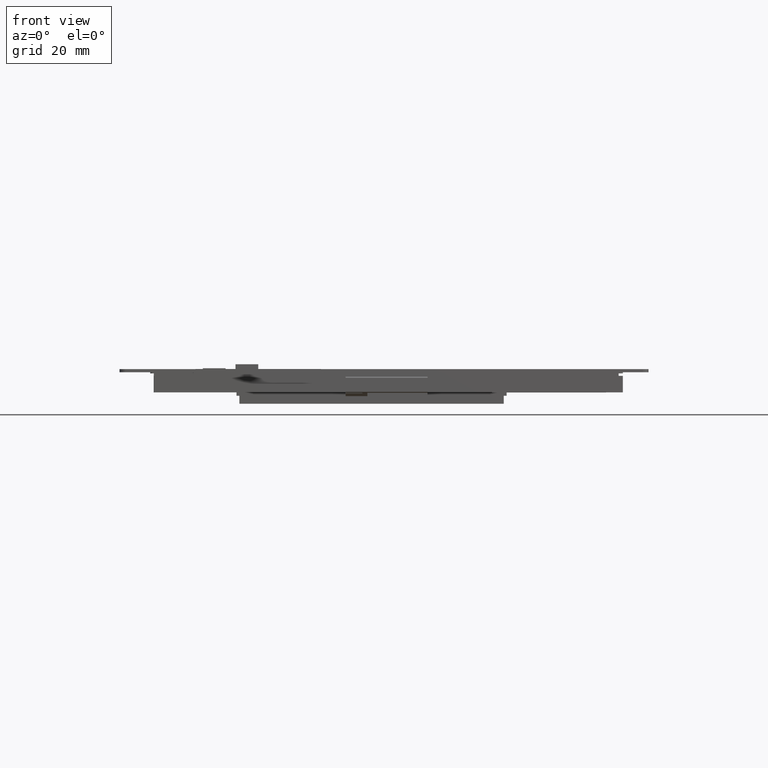
[diagram: clean part render]
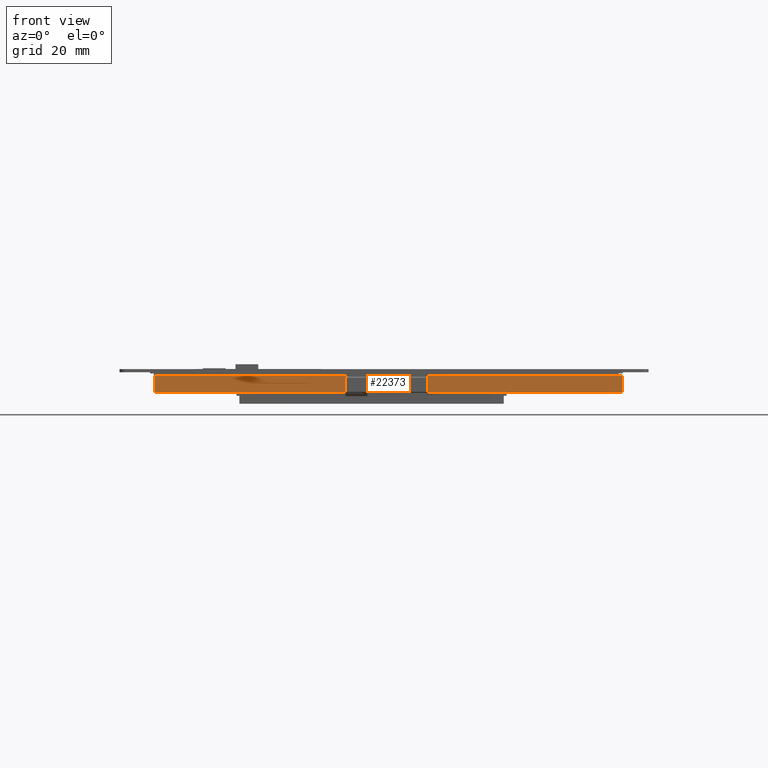
[diagram: same view with one face highlighted and labeled with its STEP entity id]
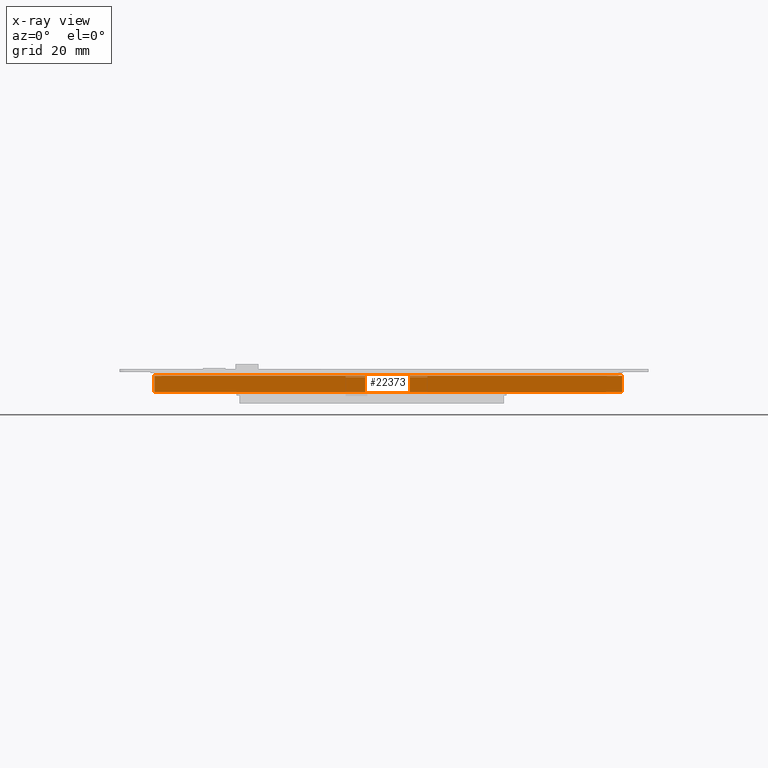
[diagram: x-ray of the same camera — body ghosted, the highlighted face saturated]
A machine part, front view. The second image highlights one B-rep face of the part: STEP entity #22373.
The next image is the same camera in x-ray: the body ghosted, the highlighted face saturated — about 0% of this face is hidden behind the body in this view.
In plain terms, the highlighted planar face has unit normal (0, -1, 0).
Its self-contained STEP definition (entity closure, byte-faithful):
#790=FACE_BOUND('',#3101,.T.);
#1870=FACE_OUTER_BOUND('',#3100,.T.);
#3100=EDGE_LOOP('',(#20115,#20116,#20117,#20118,#20119,#20120,#20121,#20122));
#3101=EDGE_LOOP('',(#20123,#20124,#20125,#20126));
#3270=LINE('',#30269,#6015);
#3535=LINE('',#30875,#6280);
#3548=LINE('',#30913,#6293);
#3551=LINE('',#30918,#6296);
#3552=LINE('',#30920,#6297);
#5732=LINE('',#36096,#8477);
#5752=LINE('',#36135,#8497);
#5753=LINE('',#36138,#8498);
#5754=LINE('',#36140,#8499);
#5756=LINE('',#36149,#8501);
#5807=LINE('',#36251,#8552);
#5808=LINE('',#36253,#8553);
#6015=VECTOR('',#24285,1000.);
#6280=VECTOR('',#24828,10.);
#6293=VECTOR('',#24871,10.);
#6296=VECTOR('',#24876,10.);
#6297=VECTOR('',#24879,10.);
#8477=VECTOR('',#29689,10.);
#8497=VECTOR('',#29721,10.);
#8498=VECTOR('',#29724,10.);
#8499=VECTOR('',#29725,10.);
#8501=VECTOR('',#29737,1000.);
#8552=VECTOR('',#29794,1000.);
#8553=VECTOR('',#29797,1000.);
#8739=VERTEX_POINT('',#30266);
#8740=VERTEX_POINT('',#30268);
#8941=VERTEX_POINT('',#30872);
#8942=VERTEX_POINT('',#30874);
#8952=VERTEX_POINT('',#30912);
#8953=VERTEX_POINT('',#30916);
#10632=VERTEX_POINT('',#36092);
#10634=VERTEX_POINT('',#36095);
#10646=VERTEX_POINT('',#36131);
#10647=VERTEX_POINT('',#36133);
#10648=VERTEX_POINT('',#36137);
#10649=VERTEX_POINT('',#36139);
#10871=EDGE_CURVE('',#8739,#8740,#3270,.T.);
#11171=EDGE_CURVE('',#8942,#8941,#3535,.T.);
#11190=EDGE_CURVE('',#8952,#8942,#3548,.T.);
#11193=EDGE_CURVE('',#8941,#8953,#3551,.T.);
#11194=EDGE_CURVE('',#8953,#8952,#3552,.T.);
#13780=EDGE_CURVE('',#10632,#10634,#5732,.T.);
#13800=EDGE_CURVE('',#10646,#10647,#5752,.T.);
#13801=EDGE_CURVE('',#10648,#10647,#5753,.T.);
#13802=EDGE_CURVE('',#10634,#10649,#5754,.T.);
#13808=EDGE_CURVE('',#10632,#10646,#5756,.T.);
#13859=EDGE_CURVE('',#10648,#8740,#5807,.T.);
#13860=EDGE_CURVE('',#10649,#8739,#5808,.T.);
#20115=ORIENTED_EDGE('',*,*,#10871,.F.);
#20116=ORIENTED_EDGE('',*,*,#13860,.F.);
#20117=ORIENTED_EDGE('',*,*,#13802,.F.);
#20118=ORIENTED_EDGE('',*,*,#13780,.F.);
#20119=ORIENTED_EDGE('',*,*,#13808,.T.);
#20120=ORIENTED_EDGE('',*,*,#13800,.T.);
#20121=ORIENTED_EDGE('',*,*,#13801,.F.);
#20122=ORIENTED_EDGE('',*,*,#13859,.T.);
#20123=ORIENTED_EDGE('',*,*,#11171,.T.);
#20124=ORIENTED_EDGE('',*,*,#11193,.T.);
#20125=ORIENTED_EDGE('',*,*,#11194,.T.);
#20126=ORIENTED_EDGE('',*,*,#11190,.T.);
#21237=PLANE('',#24000);
#22373=ADVANCED_FACE('',(#1870,#790),#21237,.T.);
#24000=AXIS2_PLACEMENT_3D('',#36252,#29795,#29796);
#24285=DIRECTION('',(1.,0.,0.));
#24828=DIRECTION('',(0.,0.,-1.));
#24871=DIRECTION('',(1.,0.,0.));
#24876=DIRECTION('',(-1.,0.,0.));
#24879=DIRECTION('',(0.,0.,1.));
#29689=DIRECTION('',(0.,0.,-1.));
#29721=DIRECTION('',(0.,0.,-1.));
#29724=DIRECTION('',(-1.,0.,0.));
#29725=DIRECTION('',(-1.,0.,0.));
#29737=DIRECTION('',(1.,0.,0.));
#29794=DIRECTION('',(0.,0.,1.));
#29795=DIRECTION('center_axis',(0.,-1.,0.));
#29796=DIRECTION('ref_axis',(0.,0.,-1.));
#29797=DIRECTION('',(0.,0.,1.));
#30266=CARTESIAN_POINT('',(-80.655,-52.36,-2.37));
#30268=CARTESIAN_POINT('',(83.685,-52.36,-2.37));
#30269=CARTESIAN_POINT('',(-80.655,-52.36,-2.37));
#30872=CARTESIAN_POINT('',(15.3325,-52.36,-2.829999999999));
#30874=CARTESIAN_POINT('',(15.3325,-52.36,-2.71000000000003));
#30875=CARTESIAN_POINT('',(15.3325,-52.36,-5.62749999999952));
#30912=CARTESIAN_POINT('',(-13.4831,-52.36,-2.71000000000003));
#30913=CARTESIAN_POINT('',(-47.06905,-52.36,-2.71000000000003));
#30916=CARTESIAN_POINT('',(-13.4831,-52.36,-2.829999999999));
#30918=CARTESIAN_POINT('',(-47.06905,-52.36,-2.829999999999));
#30920=CARTESIAN_POINT('',(-13.4831,-52.36,-5.62749999999952));
#36092=CARTESIAN_POINT('',(-18.06,-52.36,-8.12500000000002));
#36095=CARTESIAN_POINT('',(-18.06,-52.36,-8.18000000000004));
#36096=CARTESIAN_POINT('',(-18.06,-52.36,-8.12500000000002));
#36131=CARTESIAN_POINT('',(19.52,-52.36,-8.12500000000002));
#36133=CARTESIAN_POINT('',(19.52,-52.36,-8.18000000000004));
#36135=CARTESIAN_POINT('',(19.52,-52.36,-8.12500000000002));
#36137=CARTESIAN_POINT('',(83.685,-52.36,-8.18000000000004));
#36138=CARTESIAN_POINT('',(83.685,-52.36,-8.18000000000004));
#36139=CARTESIAN_POINT('',(-80.655,-52.36,-8.18000000000004));
#36140=CARTESIAN_POINT('',(83.685,-52.36,-8.18000000000004));
#36149=CARTESIAN_POINT('',(-80.655,-52.36,-8.12500000000002));
#36251=CARTESIAN_POINT('',(83.685,-52.36,-8.12500000000002));
#36252=CARTESIAN_POINT('Origin',(-80.655,-52.36,-8.12500000000002));
#36253=CARTESIAN_POINT('',(-80.655,-52.36,-8.12500000000002));